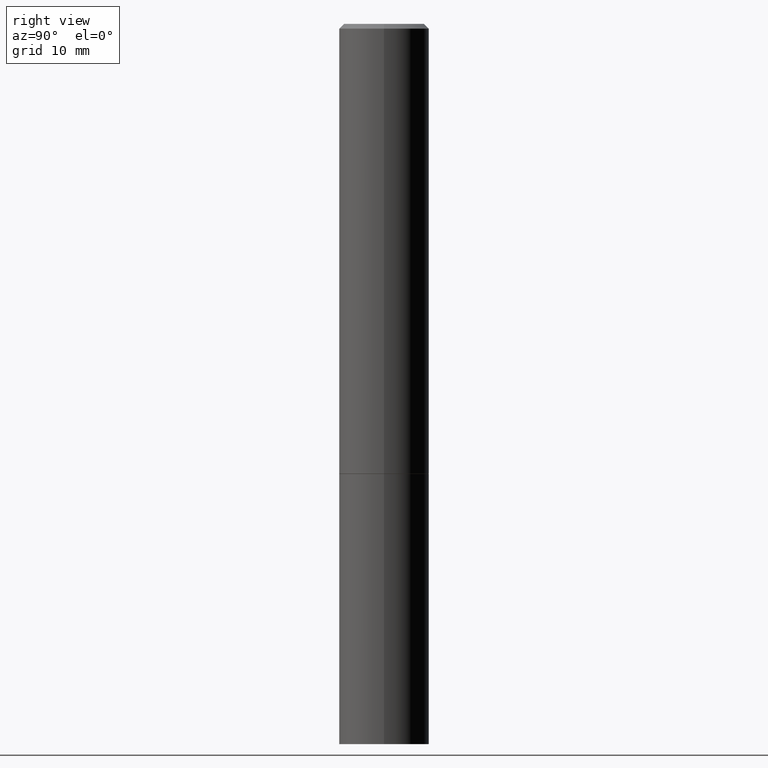
[diagram: clean part render]
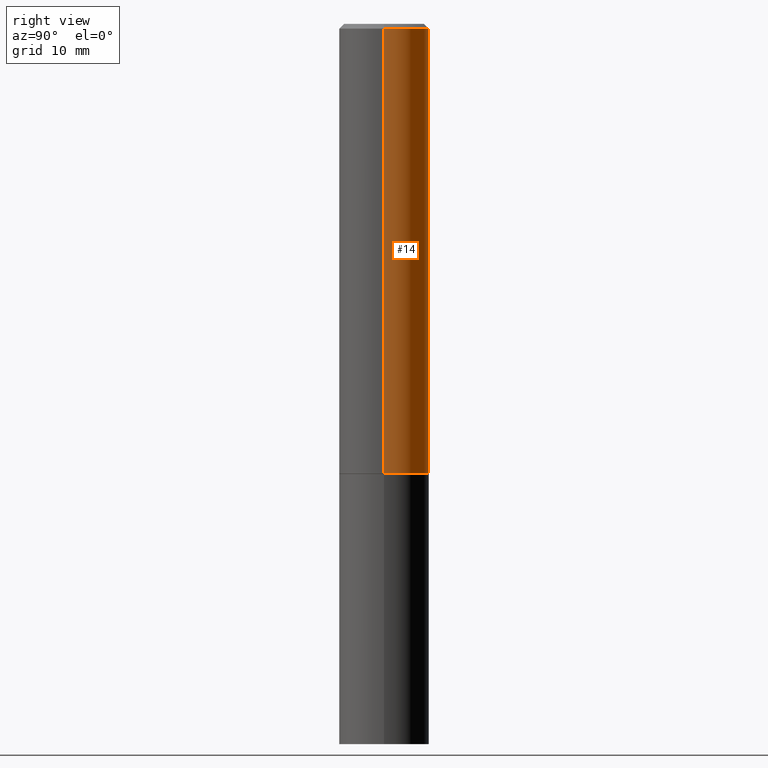
[diagram: same view with one face highlighted and labeled with its STEP entity id]
A machine part, right view. The second image highlights one B-rep face of the part: STEP entity #14.
In plain terms, the highlighted cylindrical surface (partial cylindrical patch) has radius 4.7625 mm, axis along (-0, 0, 1).
Its self-contained STEP definition (entity closure, byte-faithful):
#1 = LINE ( 'NONE', #167, #325 ) ;
#14 = ADVANCED_FACE ( 'NONE', ( #123 ), #153, .T. ) ;
#20 = DIRECTION ( 'NONE',  ( -2.445468806185136597E-29, 3.491481338843145583E-15, 1.000000000000000000 ) ) ;
#27 = VERTEX_POINT ( 'NONE', #213 ) ;
#38 = ORIENTED_EDGE ( 'NONE', *, *, #347, .T. ) ;
#61 = CIRCLE ( 'NONE', #149, 0.1875000000000000833 ) ;
#70 = EDGE_CURVE ( 'NONE', #229, #240, #71, .T. ) ;
#71 = CIRCLE ( 'NONE', #341, 0.1874999999999998335 ) ;
#83 = CARTESIAN_POINT ( 'NONE',  ( -0.1874999999999998335, 1.239475875289310724E-15, -0.02000000000000007674 ) ) ;
#86 = DIRECTION ( 'NONE',  ( 1.000000000000000000, -6.982962677686264344E-15, 0.000000000000000000 ) ) ;
#98 = DIRECTION ( 'NONE',  ( 1.000000000000000000, -6.982962677686266711E-15, 0.000000000000000000 ) ) ;
#120 = EDGE_CURVE ( 'NONE', #27, #240, #1, .T. ) ;
#123 = FACE_OUTER_BOUND ( 'NONE', #277, .T. ) ;
#127 = DIRECTION ( 'NONE',  ( -2.445468806185136597E-29, 3.491481338843145583E-15, 1.000000000000000000 ) ) ;
#135 = DIRECTION ( 'NONE',  ( -2.445468806185136877E-29, 3.491481338843145188E-15, 1.000000000000000000 ) ) ;
#139 = LINE ( 'NONE', #193, #233 ) ;
#143 = DIRECTION ( 'NONE',  ( -2.445468806185136597E-29, 3.491481338843145583E-15, 1.000000000000000000 ) ) ;
#149 = AXIS2_PLACEMENT_3D ( 'NONE', #236, #143, #86 ) ;
#151 = ORIENTED_EDGE ( 'NONE', *, *, #120, .T. ) ;
#153 = CYLINDRICAL_SURFACE ( 'NONE', #259, 0.1874999999999999722 ) ;
#166 = DIRECTION ( 'NONE',  ( -2.445468806185136877E-29, 3.491481338843145188E-15, 1.000000000000000000 ) ) ;
#167 = CARTESIAN_POINT ( 'NONE',  ( -0.1874999999999999722, 1.332267629550187651E-15, -9.223003294227946589E-30 ) ) ;
#192 = CARTESIAN_POINT ( 'NONE',  ( 0.000000000000000000, 0.000000000000000000, 0.000000000000000000 ) ) ;
#193 = CARTESIAN_POINT ( 'NONE',  ( 0.1874999999999999722, -1.309305502066174811E-15, 9.142831454617378210E-30 ) ) ;
#205 = VERTEX_POINT ( 'NONE', #343 ) ;
#210 = EDGE_CURVE ( 'NONE', #205, #229, #139, .T. ) ;
#213 = CARTESIAN_POINT ( 'NONE',  ( -0.1875000000000000555, -1.974165198334270073E-15, -1.874000000000000110 ) ) ;
#229 = VERTEX_POINT ( 'NONE', #282 ) ;
#233 = VECTOR ( 'NONE', #135, 39.37007874015748143 ) ;
#236 = CARTESIAN_POINT ( 'NONE',  ( 4.582808542790945516E-29, -6.543036028992054911E-15, -1.874000000000000110 ) ) ;
#237 = ORIENTED_EDGE ( 'NONE', *, *, #210, .F. ) ;
#240 = VERTEX_POINT ( 'NONE', #83 ) ;
#259 = AXIS2_PLACEMENT_3D ( 'NONE', #192, #127, #360 ) ;
#271 = CARTESIAN_POINT ( 'NONE',  ( 4.890937612370292426E-31, -6.982962677686317493E-17, -0.02000000000000007674 ) ) ;
#277 = EDGE_LOOP ( 'NONE', ( #38, #151, #354, #237 ) ) ;
#282 = CARTESIAN_POINT ( 'NONE',  ( 0.1874999999999998335, -1.356173001359024283E-15, -0.02000000000000007674 ) ) ;
#325 = VECTOR ( 'NONE', #166, 39.37007874015748143 ) ;
#341 = AXIS2_PLACEMENT_3D ( 'NONE', #271, #20, #98 ) ;
#343 = CARTESIAN_POINT ( 'NONE',  ( 0.1875000000000000833, -7.852341531058230708E-15, -1.874000000000000110 ) ) ;
#347 = EDGE_CURVE ( 'NONE', #205, #27, #61, .T. ) ;
#354 = ORIENTED_EDGE ( 'NONE', *, *, #70, .F. ) ;
#360 = DIRECTION ( 'NONE',  ( 1.000000000000000000, -6.982962677686266711E-15, 4.876176775795935793E-29 ) ) ;